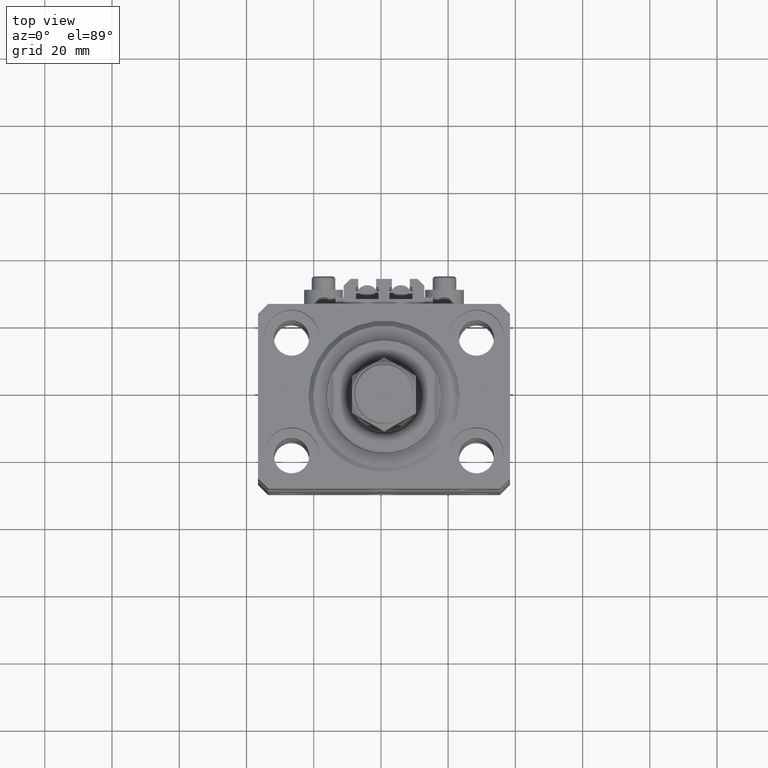
[diagram: clean part render]
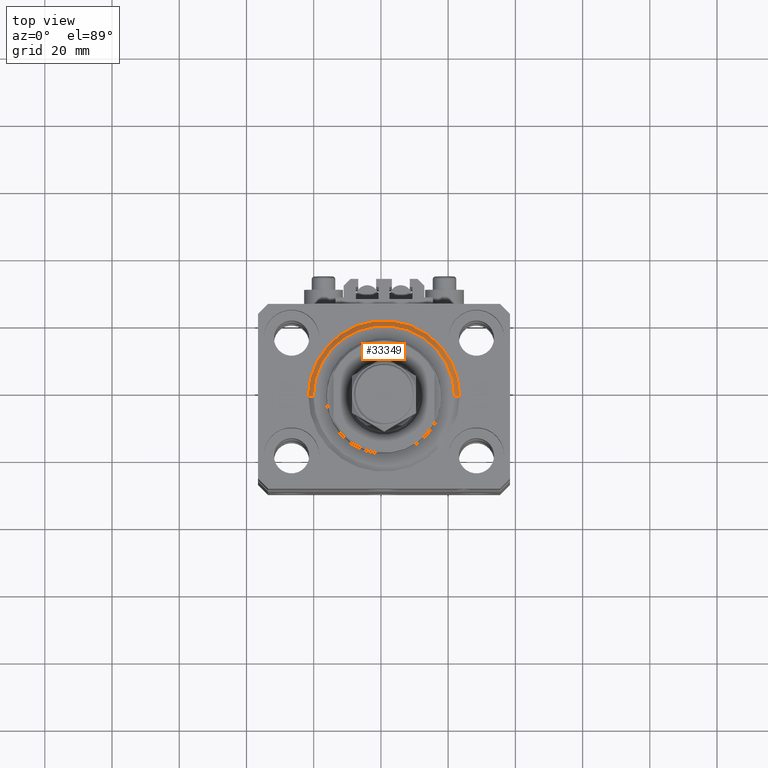
[diagram: same view with one face highlighted and labeled with its STEP entity id]
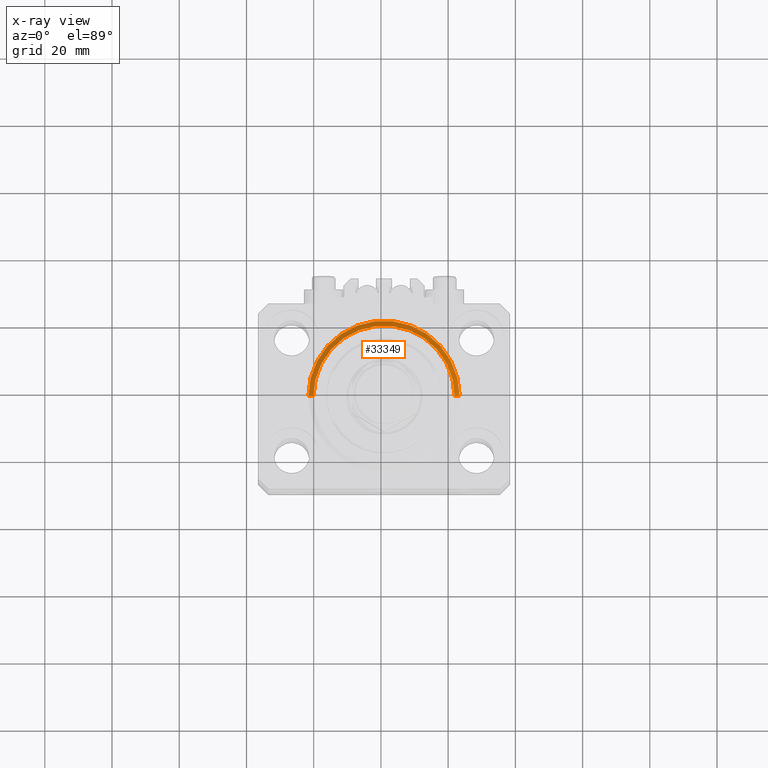
[diagram: x-ray of the same camera — body ghosted, the highlighted face saturated]
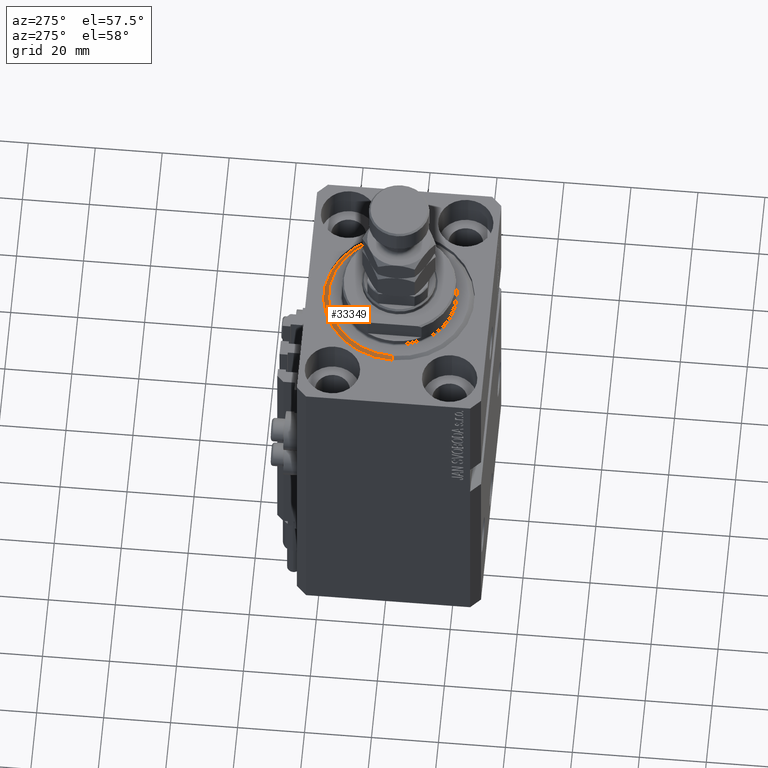
[diagram: same view with one face highlighted and labeled with its STEP entity id]
A machine part, top view. The second image highlights one B-rep face of the part: STEP entity #33349.
The next image is the same camera in x-ray: the body ghosted, the highlighted face saturated — about 0% of this face is hidden behind the body in this view.
A second angle (auxiliary view) of the same face is appended — the face is thin or edge-on in the first view.
In plain terms, the highlighted conical surface has half-angle 45 deg.
Its self-contained STEP definition (entity closure, byte-faithful):
#640 = CARTESIAN_POINT ( 'NONE',  ( -22.50000000000000355, 2.755455298081545172E-15, 1.500000000000001332 ) ) ;
#1768 = CARTESIAN_POINT ( 'NONE',  ( 22.50000000000000355, 0.000000000000000000, 1.500000000000001332 ) ) ;
#1802 = CARTESIAN_POINT ( 'NONE',  ( 0.000000000000000000, 0.000000000000000000, 1.500000000000001332 ) ) ;
#2379 = CARTESIAN_POINT ( 'NONE',  ( -22.50000000000000355, 0.000000000000000000, 1.500000000000001332 ) ) ;
#4320 = VERTEX_POINT ( 'NONE', #6761 ) ;
#4674 = DIRECTION ( 'NONE',  ( -0.7071067811865500152, 8.659560562354963673E-17, 0.7071067811865451302 ) ) ;
#4814 = CARTESIAN_POINT ( 'NONE',  ( -20.99999999999998934, 2.663606788145492628E-15, 0.000000000000000000 ) ) ;
#5552 = ORIENTED_EDGE ( 'NONE', *, *, #23958, .F. ) ;
#5553 = LINE ( 'NONE', #1768, #19610 ) ;
#6322 = EDGE_LOOP ( 'NONE', ( #44820, #44114, #37706, #5552 ) ) ;
#6761 = CARTESIAN_POINT ( 'NONE',  ( 20.99999999999998934, 0.000000000000000000, 0.000000000000000000 ) ) ;
#7211 = VERTEX_POINT ( 'NONE', #4814 ) ;
#9381 = CIRCLE ( 'NONE', #15800, 20.99999999999998934 ) ;
#11137 = AXIS2_PLACEMENT_3D ( 'NONE', #1802, #17182, #29004 ) ;
#11556 = VERTEX_POINT ( 'NONE', #25343 ) ;
#11752 = DIRECTION ( 'NONE',  ( 1.000000000000000000, 0.000000000000000000, 0.000000000000000000 ) ) ;
#14329 = CARTESIAN_POINT ( 'NONE',  ( 0.000000000000000000, 0.000000000000000000, 0.000000000000000000 ) ) ;
#15800 = AXIS2_PLACEMENT_3D ( 'NONE', #14329, #38022, #41804 ) ;
#15952 = CIRCLE ( 'NONE', #11137, 22.50000000000000355 ) ;
#16413 = EDGE_CURVE ( 'NONE', #7211, #40432, #27343, .T. ) ;
#17182 = DIRECTION ( 'NONE',  ( -0.000000000000000000, -0.000000000000000000, 1.000000000000000000 ) ) ;
#19610 = VECTOR ( 'NONE', #28729, 1000.000000000000114 ) ;
#22331 = CONICAL_SURFACE ( 'NONE', #38446, 22.50000000000000355, 0.7853981633974517207 ) ;
#23958 = EDGE_CURVE ( 'NONE', #4320, #11556, #5553, .T. ) ;
#25188 = VECTOR ( 'NONE', #4674, 1000.000000000000114 ) ;
#25343 = CARTESIAN_POINT ( 'NONE',  ( 22.50000000000000355, 2.755455298081545172E-15, 1.500000000000001332 ) ) ;
#27343 = LINE ( 'NONE', #640, #25188 ) ;
#28729 = DIRECTION ( 'NONE',  ( 0.7071067811865500152, 0.000000000000000000, 0.7071067811865451302 ) ) ;
#29004 = DIRECTION ( 'NONE',  ( 1.000000000000000000, 0.000000000000000000, 0.000000000000000000 ) ) ;
#30130 = EDGE_CURVE ( 'NONE', #7211, #4320, #9381, .T. ) ;
#31138 = DIRECTION ( 'NONE',  ( -0.000000000000000000, -0.000000000000000000, 1.000000000000000000 ) ) ;
#33349 = ADVANCED_FACE ( 'NONE', ( #37980 ), #22331, .T. ) ;
#37292 = EDGE_CURVE ( 'NONE', #11556, #40432, #15952, .T. ) ;
#37706 = ORIENTED_EDGE ( 'NONE', *, *, #37292, .F. ) ;
#37980 = FACE_OUTER_BOUND ( 'NONE', #6322, .T. ) ;
#38022 = DIRECTION ( 'NONE',  ( -0.000000000000000000, -0.000000000000000000, -1.000000000000000000 ) ) ;
#38446 = AXIS2_PLACEMENT_3D ( 'NONE', #46283, #31138, #11752 ) ;
#40432 = VERTEX_POINT ( 'NONE', #2379 ) ;
#41804 = DIRECTION ( 'NONE',  ( 1.000000000000000000, 0.000000000000000000, 0.000000000000000000 ) ) ;
#44114 = ORIENTED_EDGE ( 'NONE', *, *, #16413, .T. ) ;
#44820 = ORIENTED_EDGE ( 'NONE', *, *, #30130, .F. ) ;
#46283 = CARTESIAN_POINT ( 'NONE',  ( 0.000000000000000000, 0.000000000000000000, 1.500000000000001332 ) ) ;